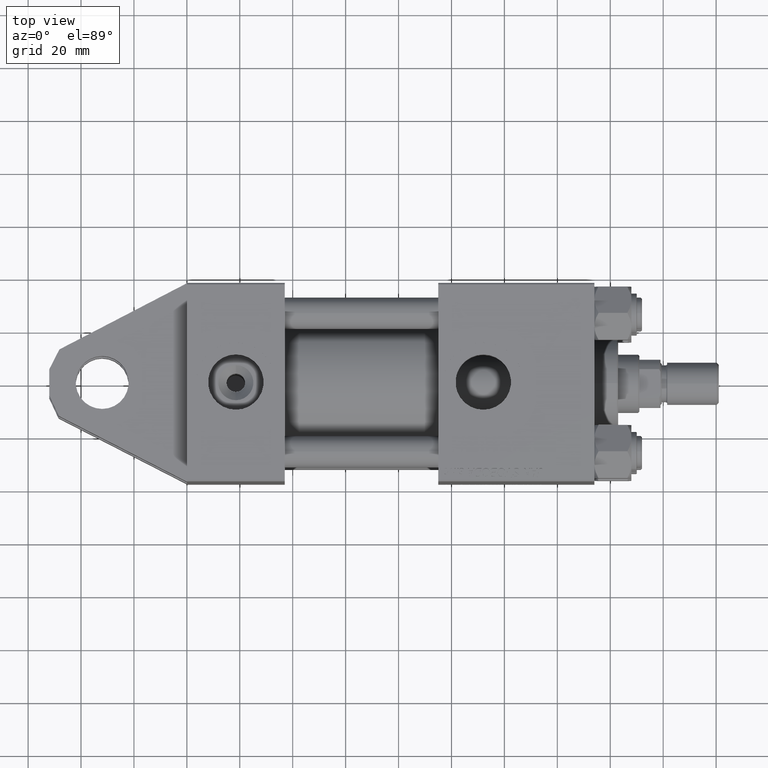
[diagram: clean part render]
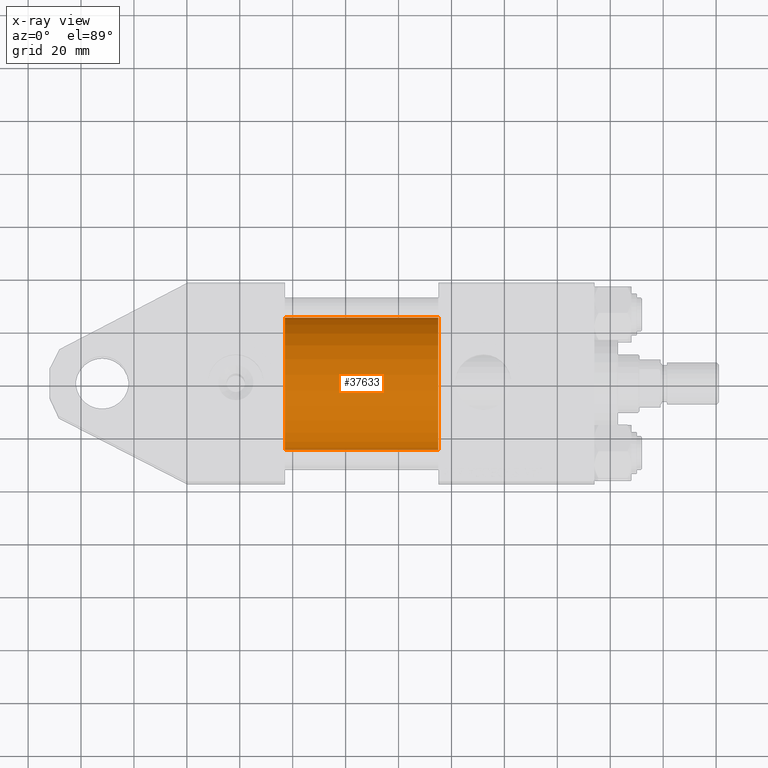
[diagram: x-ray — body ghosted, one internal face saturated and labeled with its STEP entity id]
A machine part, top view, then the same camera in x-ray: the body is ghosted and one INTERNAL B-rep face — a face not visible from any outside direction — is saturated and labeled: STEP entity #37633.
In plain terms, the highlighted cylindrical surface (partial cylindrical patch) has radius 25 mm, axis along (-1, -0, 0).
Its self-contained STEP definition (entity closure, byte-faithful):
#761 = CARTESIAN_POINT ( 'NONE',  ( 95.00000000000000000, -3.469446951953614189E-15, 0.000000000000000000 ) ) ;
#797 = VERTEX_POINT ( 'NONE', #4933 ) ;
#4933 = CARTESIAN_POINT ( 'NONE',  ( 95.00000000000000000, -3.469446951953614189E-15, 25.00000000000000000 ) ) ;
#5008 = VERTEX_POINT ( 'NONE', #22738 ) ;
#5294 = EDGE_LOOP ( 'NONE', ( #5985, #29174, #41666, #15855 ) ) ;
#5909 = CIRCLE ( 'NONE', #24454, 25.00000000000000000 ) ;
#5985 = ORIENTED_EDGE ( 'NONE', *, *, #15823, .T. ) ;
#7396 = VERTEX_POINT ( 'NONE', #14699 ) ;
#7591 = CARTESIAN_POINT ( 'NONE',  ( 95.00000000000000000, -3.469446951953614189E-15, 25.00000000000000000 ) ) ;
#10796 = VECTOR ( 'NONE', #39752, 1000.000000000000000 ) ;
#10921 = CARTESIAN_POINT ( 'NONE',  ( 95.00000000000000000, -4.078299540852317872E-16, -25.00000000000000000 ) ) ;
#11488 = DIRECTION ( 'NONE',  ( 0.000000000000000000, 0.000000000000000000, -1.000000000000000000 ) ) ;
#13386 = CIRCLE ( 'NONE', #25174, 25.00000000000000000 ) ;
#14699 = CARTESIAN_POINT ( 'NONE',  ( 95.00000000000000000, -4.078299540852317872E-16, -25.00000000000000000 ) ) ;
#15539 = EDGE_CURVE ( 'NONE', #797, #5008, #27642, .T. ) ;
#15823 = EDGE_CURVE ( 'NONE', #797, #7396, #13386, .T. ) ;
#15855 = ORIENTED_EDGE ( 'NONE', *, *, #15539, .F. ) ;
#16882 = DIRECTION ( 'NONE',  ( -1.000000000000000000, -0.000000000000000000, -0.000000000000000000 ) ) ;
#17700 = DIRECTION ( 'NONE',  ( 1.000000000000000000, 0.000000000000000000, 0.000000000000000000 ) ) ;
#17873 = VERTEX_POINT ( 'NONE', #46838 ) ;
#22738 = CARTESIAN_POINT ( 'NONE',  ( 37.00000000000000000, -3.469446951953614189E-15, 25.00000000000000000 ) ) ;
#23281 = EDGE_CURVE ( 'NONE', #5008, #17873, #5909, .T. ) ;
#24454 = AXIS2_PLACEMENT_3D ( 'NONE', #37734, #17700, #41943 ) ;
#25174 = AXIS2_PLACEMENT_3D ( 'NONE', #47084, #42602, #11488 ) ;
#26233 = LINE ( 'NONE', #10921, #47860 ) ;
#26620 = DIRECTION ( 'NONE',  ( 0.000000000000000000, 0.000000000000000000, 1.000000000000000000 ) ) ;
#27012 = DIRECTION ( 'NONE',  ( -1.000000000000000000, -0.000000000000000000, -0.000000000000000000 ) ) ;
#27642 = LINE ( 'NONE', #7591, #10796 ) ;
#29174 = ORIENTED_EDGE ( 'NONE', *, *, #51564, .T. ) ;
#36910 = CYLINDRICAL_SURFACE ( 'NONE', #46627, 25.00000000000000000 ) ;
#37633 = ADVANCED_FACE ( 'NONE', ( #44818 ), #36910, .F. ) ;
#37734 = CARTESIAN_POINT ( 'NONE',  ( 37.00000000000000000, -3.469446951953614189E-15, 0.000000000000000000 ) ) ;
#39752 = DIRECTION ( 'NONE',  ( -1.000000000000000000, -0.000000000000000000, -0.000000000000000000 ) ) ;
#41666 = ORIENTED_EDGE ( 'NONE', *, *, #23281, .F. ) ;
#41943 = DIRECTION ( 'NONE',  ( 0.000000000000000000, 0.000000000000000000, -1.000000000000000000 ) ) ;
#42602 = DIRECTION ( 'NONE',  ( 1.000000000000000000, 0.000000000000000000, 0.000000000000000000 ) ) ;
#44818 = FACE_OUTER_BOUND ( 'NONE', #5294, .T. ) ;
#46627 = AXIS2_PLACEMENT_3D ( 'NONE', #761, #16882, #26620 ) ;
#46838 = CARTESIAN_POINT ( 'NONE',  ( 37.00000000000000000, -4.078299540852317872E-16, -25.00000000000000000 ) ) ;
#47084 = CARTESIAN_POINT ( 'NONE',  ( 95.00000000000000000, -3.469446951953614189E-15, 0.000000000000000000 ) ) ;
#47860 = VECTOR ( 'NONE', #27012, 1000.000000000000000 ) ;
#51564 = EDGE_CURVE ( 'NONE', #7396, #17873, #26233, .T. ) ;